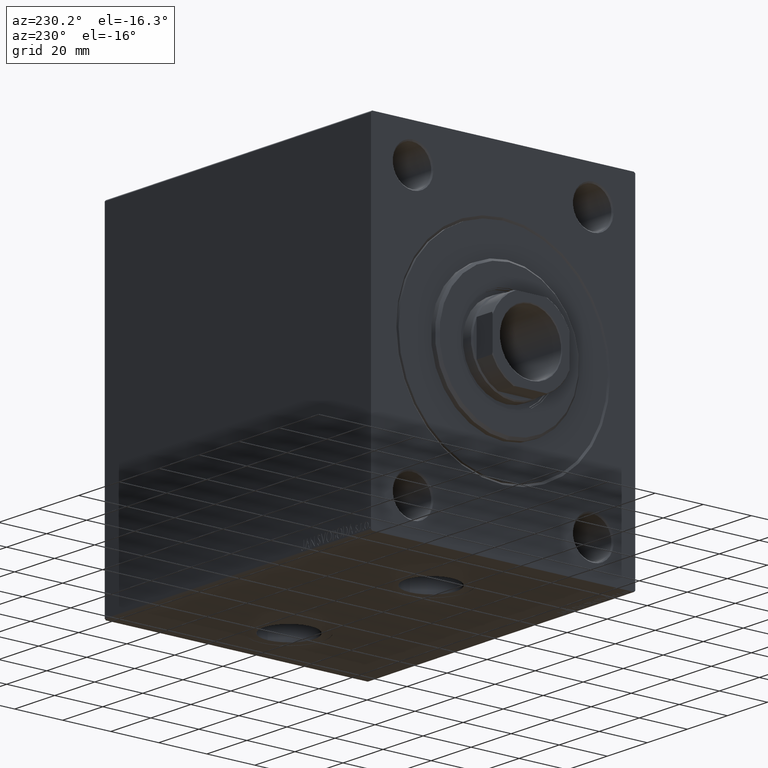
[diagram: clean part render]
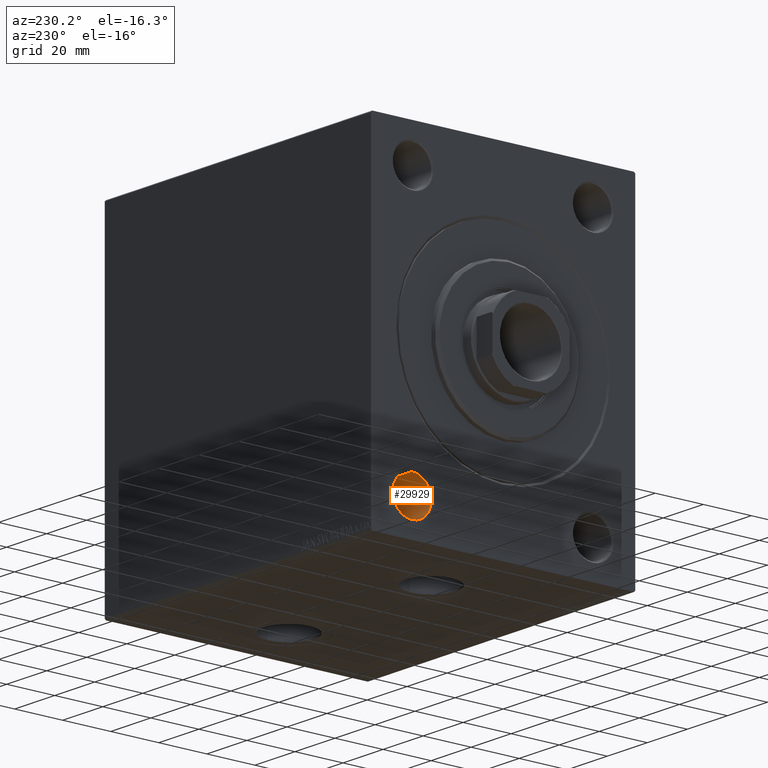
[diagram: same view with one face highlighted and labeled with its STEP entity id]
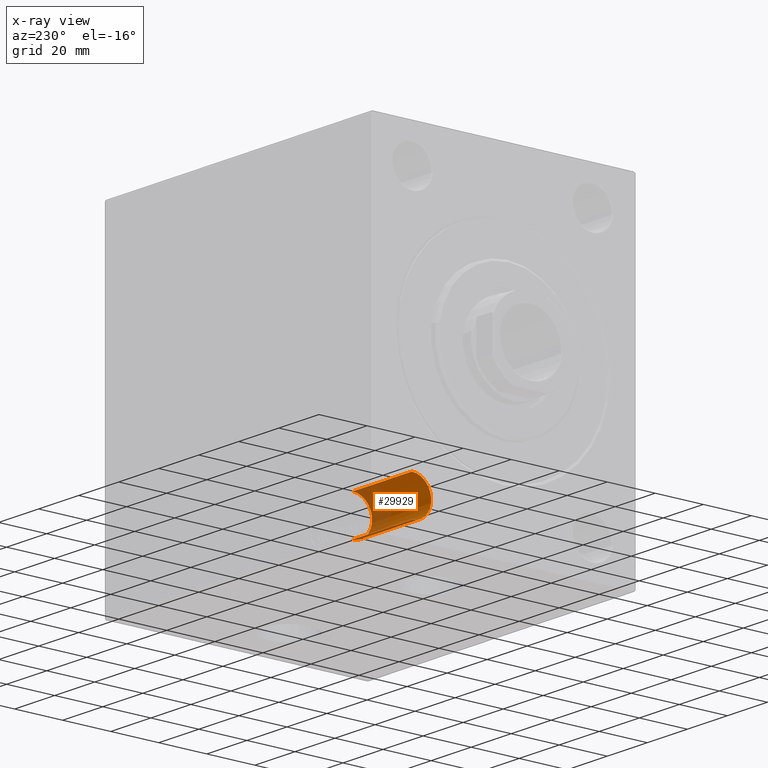
[diagram: x-ray of the same camera — body ghosted, the highlighted face saturated]
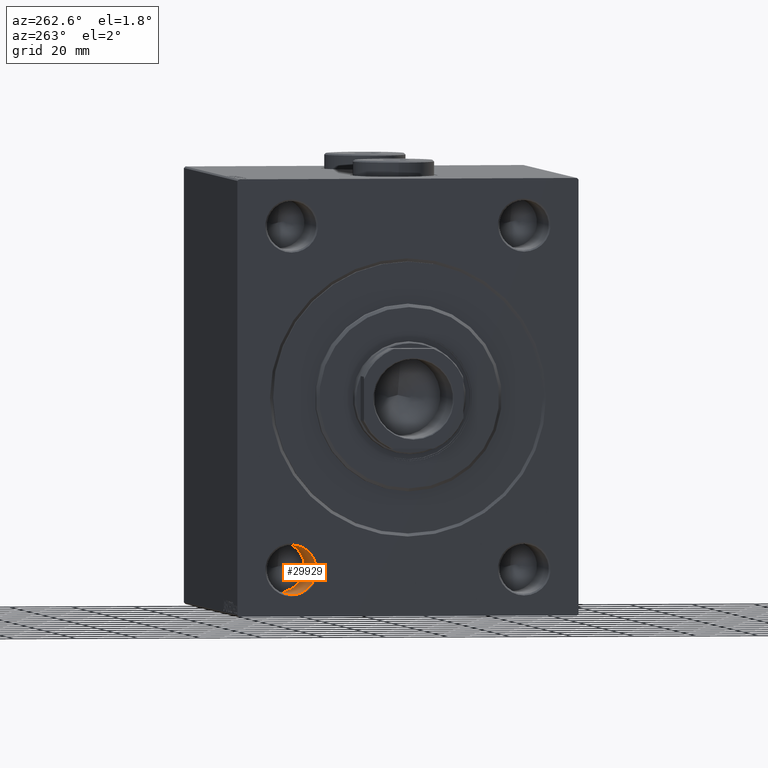
[diagram: same view with one face highlighted and labeled with its STEP entity id]
A machine part, auxiliary view. The second image highlights one B-rep face of the part: STEP entity #29929.
The next image is the same camera in x-ray: the body ghosted, the highlighted face saturated — about 30% of this face is hidden behind the body in this view.
A second angle (auxiliary view) of the same face is appended — the face is thin or edge-on in the first view.
In plain terms, the highlighted cylindrical surface (edge-blend (fillet) strip) has radius 8 mm, axis along (-1, -0, -0).
Its self-contained STEP definition (entity closure, byte-faithful):
#233 = CARTESIAN_POINT ( 'NONE',  ( 0.000000000000000000, 37.50000000000000000, -47.00000000000000000 ) ) ;
#281 = EDGE_CURVE ( 'NONE', #16432, #13617, #37150, .T. ) ;
#672 = CARTESIAN_POINT ( 'NONE',  ( 0.5000000000000108802, 37.50000000000000000, -54.99999999999999289 ) ) ;
#830 = FACE_OUTER_BOUND ( 'NONE', #25419, .T. ) ;
#1916 = CARTESIAN_POINT ( 'NONE',  ( 0.5000000000000108802, 37.50000000000000000, -62.99999999999998579 ) ) ;
#3592 = CARTESIAN_POINT ( 'NONE',  ( 30.00000000000000000, 37.50000000000000000, -54.99999999999999289 ) ) ;
#3609 = ORIENTED_EDGE ( 'NONE', *, *, #6699, .F. ) ;
#3810 = DIRECTION ( 'NONE',  ( -1.000000000000000000, -0.000000000000000000, -0.000000000000000000 ) ) ;
#3905 = DIRECTION ( 'NONE',  ( 0.000000000000000000, 0.000000000000000000, -1.000000000000000000 ) ) ;
#4101 = CARTESIAN_POINT ( 'NONE',  ( 30.00000000000000000, 37.50000000000000000, -62.99999999999998579 ) ) ;
#4639 = CARTESIAN_POINT ( 'NONE',  ( 0.000000000000000000, 37.50000000000000000, -62.99999999999998579 ) ) ;
#6699 = EDGE_CURVE ( 'NONE', #13617, #15246, #41845, .T. ) ;
#7599 = DIRECTION ( 'NONE',  ( -1.000000000000000000, 0.000000000000000000, 0.000000000000000000 ) ) ;
#8776 = EDGE_CURVE ( 'NONE', #31095, #15246, #43271, .T. ) ;
#12802 = ORIENTED_EDGE ( 'NONE', *, *, #281, .F. ) ;
#13617 = VERTEX_POINT ( 'NONE', #43868 ) ;
#14227 = AXIS2_PLACEMENT_3D ( 'NONE', #32717, #43569, #32276 ) ;
#15246 = VERTEX_POINT ( 'NONE', #44846 ) ;
#15487 = VECTOR ( 'NONE', #15946, 1000.000000000000000 ) ;
#15946 = DIRECTION ( 'NONE',  ( -1.000000000000000000, -0.000000000000000000, -0.000000000000000000 ) ) ;
#16432 = VERTEX_POINT ( 'NONE', #4101 ) ;
#18849 = CYLINDRICAL_SURFACE ( 'NONE', #14227, 7.999999999999992895 ) ;
#19630 = VECTOR ( 'NONE', #24314, 1000.000000000000000 ) ;
#24314 = DIRECTION ( 'NONE',  ( -1.000000000000000000, -0.000000000000000000, -0.000000000000000000 ) ) ;
#25419 = EDGE_LOOP ( 'NONE', ( #12802, #29471, #41852, #3609 ) ) ;
#25648 = EDGE_CURVE ( 'NONE', #16432, #31095, #33519, .T. ) ;
#29471 = ORIENTED_EDGE ( 'NONE', *, *, #25648, .T. ) ;
#29929 = ADVANCED_FACE ( 'NONE', ( #830 ), #18849, .F. ) ;
#30532 = AXIS2_PLACEMENT_3D ( 'NONE', #3592, #3810, #38486 ) ;
#31095 = VERTEX_POINT ( 'NONE', #1916 ) ;
#32276 = DIRECTION ( 'NONE',  ( 0.000000000000000000, 0.000000000000000000, 1.000000000000000000 ) ) ;
#32717 = CARTESIAN_POINT ( 'NONE',  ( 0.000000000000000000, 37.50000000000000000, -54.99999999999999289 ) ) ;
#33519 = LINE ( 'NONE', #4639, #15487 ) ;
#37150 = CIRCLE ( 'NONE', #30532, 7.999999999999992895 ) ;
#38486 = DIRECTION ( 'NONE',  ( 0.000000000000000000, 0.000000000000000000, 1.000000000000000000 ) ) ;
#41845 = LINE ( 'NONE', #233, #19630 ) ;
#41852 = ORIENTED_EDGE ( 'NONE', *, *, #8776, .T. ) ;
#42546 = AXIS2_PLACEMENT_3D ( 'NONE', #672, #7599, #3905 ) ;
#43271 = CIRCLE ( 'NONE', #42546, 7.999999999999992895 ) ;
#43569 = DIRECTION ( 'NONE',  ( -1.000000000000000000, -0.000000000000000000, -0.000000000000000000 ) ) ;
#43868 = CARTESIAN_POINT ( 'NONE',  ( 30.00000000000000000, 37.50000000000000000, -47.00000000000000000 ) ) ;
#44846 = CARTESIAN_POINT ( 'NONE',  ( 0.5000000000000108802, 37.50000000000000000, -47.00000000000000000 ) ) ;